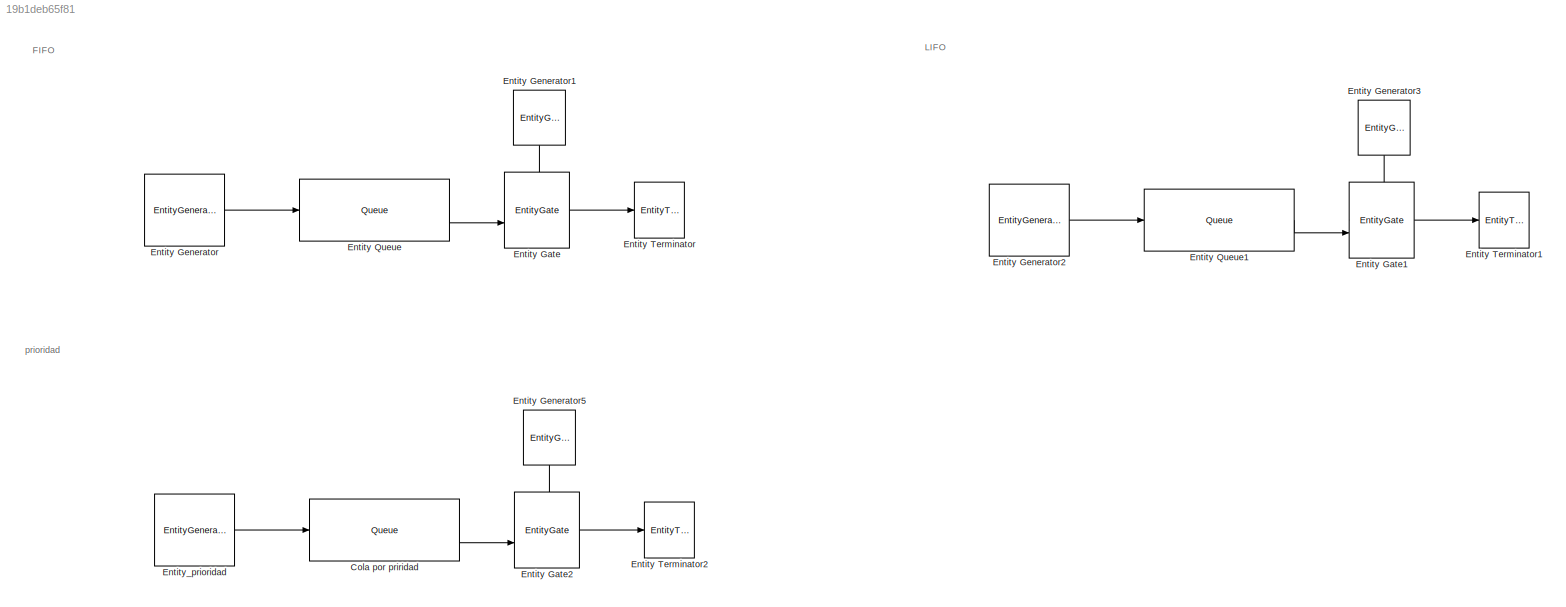
MODEL slx_19b1deb65f81
KIND model
CONFIG AbsTol = auto
CONFIG EnableMultiTasking = off
CONFIG FixedStep = auto
CONFIG MaxStep = auto
CONFIG MinStep = auto
CONFIG RelTol = 1e-3
CONFIG SampleTimeConstraint = Unconstrained
CONFIG SolverName = VariableStepAuto
CONFIG StartTime = 0.0
CONFIG StopTime = 25
BLOCK [Queue] Cola por priridad
  InputPortMap = u0
  InputPortMessageModes = m
  OutputPortMap = o5
  OutputPortMessageModes = m
  PrioritySource = attribute
  QueueType = Priority
  SortingDirection = Descending
BLOCK [EntityGate] Entity Gate
  InputPortMap = u0,u1
  InputPortMessageModes = m,m
  OperatingMode = Release gate
  OutputPortMap = o0
  OutputPortMessageModes = m
BLOCK [EntityGate] Entity Gate1
  InputPortMap = u0,u1
  InputPortMessageModes = m,m
  OperatingMode = Release gate
  OutputPortMap = o0
  OutputPortMessageModes = m
BLOCK [EntityGate] Entity Gate2
  InputPortMap = u0,u1
  InputPortMessageModes = m,m
  OperatingMode = Release gate
  OutputPortMap = o0
  OutputPortMessageModes = m
BLOCK [EntityGenerator] Entity Generator
  AttributeName = attribute
  EntityType = Structured
  EntityTypeName = Entity
  GenerateAction = % Se modifica el valor del atributo de la entidad en cada paso de reloj.\npersistent SEC1;\npersistent idx1;\nif isempty(SEC1)\n    SEC1 = [1 2 3 4 5 6 7 8 9 10];\n    idx1 = 1;\nend\nif idx1 <= numel(SEC1)\n    entity.attribute = SEC1(idx1);\nend\nidx1 = idx1 + 1;  <repeated x3 — deduplicated; at blocks: Entity Generator, Entity Generator2, Entity_prioridad>
  GenerateEntityAtSimulationStart = off
  IntergenerationTimeAction = % Patrón de repetición de secuencia\n% Se inicializan las variables\npersistent SEC;\npersistent idx;\nif isempty(SEC)\n    % Se generan 10 entidades con 1 segundo de intervalo\n    SEC = [1 1 1 1 1 1 1 1 1 1];\n    idx = 1;\nend\nif idx > numel(SEC)\n    % Se detiene la generación de entidades después de 10\n    dt = inf;\n    else\n        dt = SEC(idx);\nend\nidx = idx + 1;  <repeated x3 — deduplicated; at blocks: Entity Generator, Entity Generator2, Entity_prioridad>
  OutputPortMap = o3
  OutputPortMessageModes = m
  TimeSource = MATLAB action
BLOCK [EntityGenerator] Entity Generator1
  AttributeInitialValue = 0
  AttributeName = entity
  EntityTypeName = Entity
  GenerateEntityAtSimulationStart = off
  IntergenerationTimeAction = % Cada valor de la secuencia representa el retardo en liberar las entidades\n% de la cola\npersistent SEC;\npersistent idx;\nif isempty(SEC)\n    SEC = [10 1 1 1 1 1 1 1 1 1];\n    idx = 1;\nend\nif idx > numel(SEC)\n    dt= inf;\n    else\n        dt = SEC(idx);\nend\nidx = idx + 1;
  NameLocation = left
  OutputPortMap = o3
  OutputPortMessageModes = m
  TimeSource = MATLAB action
BLOCK [EntityGenerator] Entity Generator2
  AttributeName = attribute
  EntityType = Structured
  EntityTypeName = Entity
  GenerateEntityAtSimulationStart = off
  OutputPortMap = o3
  OutputPortMessageModes = m
  TimeSource = MATLAB action
BLOCK [EntityGenerator] Entity Generator3
  AttributeInitialValue = 0
  AttributeName = entity
  EntityTypeName = Entity
  GenerateEntityAtSimulationStart = off
  IntergenerationTimeAction = % Cada valor de la secuencia representa el retardo en liberar las entidades\n% de la cola\npersistent SEC;\npersistent idx;\nif isempty(SEC)\n    SEC = [11 1 1 1 1 1 1 1 1 1];\n    idx = 1;\nend\nif idx > numel(SEC)\n    dt= inf;\n    else\n        dt = SEC(idx);\nend\nidx = idx + 1;
  NameLocation = left
  OutputPortMap = o3
  OutputPortMessageModes = m
  TimeSource = MATLAB action
BLOCK [EntityGenerator] Entity Generator5
  AttributeInitialValue = 0
  AttributeName = entity
  EntityTypeName = Entity
  GenerateEntityAtSimulationStart = off
  IntergenerationTimeAction = % Cada valor de la secuencia representa el retardo en liberar las entidades\n% de la cola\npersistent SEC;\npersistent idx;\nif isempty(SEC)\n    SEC = [10 1 1 1 1 1 1 1 1 1];\n    idx = 1;\nend\nif idx > numel(SEC)\n    dt= inf;\n    else\n        dt = SEC(idx);\nend\nidx = idx + 1;
  NameLocation = left
  OutputPortMap = o3
  OutputPortMessageModes = m
  TimeSource = MATLAB action
BLOCK [Queue] Entity Queue
  InputPortMap = u0
  InputPortMessageModes = m
  OutputPortMap = o5
  OutputPortMessageModes = m
BLOCK [Queue] Entity Queue1
  InputPortMap = u0
  InputPortMessageModes = m
  OutputPortMap = o5
  OutputPortMessageModes = m
  QueueType = LIFO
BLOCK [EntityTerminator] Entity Terminator
  InputPortMap = u0
  InputPortMessageModes = m
BLOCK [EntityTerminator] Entity Terminator1
  InputPortMap = u0
  InputPortMessageModes = m
BLOCK [EntityTerminator] Entity Terminator2
  InputPortMap = u0
  InputPortMessageModes = m
BLOCK [EntityGenerator] Entity_prioridad
  AttributeName = attribute
  EntityType = Structured
  EntityTypeName = Entity
  GenerateEntityAtSimulationStart = off
  OutputPortMap = o3
  OutputPortMessageModes = m
  TimeSource = MATLAB action
ANNOTATION (root): FIFO
ANNOTATION (root): LIFO
ANNOTATION (root): prioridad
LINE Cola por priridad:1 -> Entity Gate2:2
LINE Entity Gate1:1 -> Entity Terminator1:1
LINE Entity Gate2:1 -> Entity Terminator2:1
LINE Entity Gate:1 -> Entity Terminator:1
LINE Entity Generator1:1 -> Entity Gate:1
LINE Entity Generator2:1 -> Entity Queue1:1
LINE Entity Generator3:1 -> Entity Gate1:1
LINE Entity Generator5:1 -> Entity Gate2:1
LINE Entity Generator:1 -> Entity Queue:1
LINE Entity Queue1:1 -> Entity Gate1:2
LINE Entity Queue:1 -> Entity Gate:2
LINE Entity_prioridad:1 -> Cola por priridad:1
